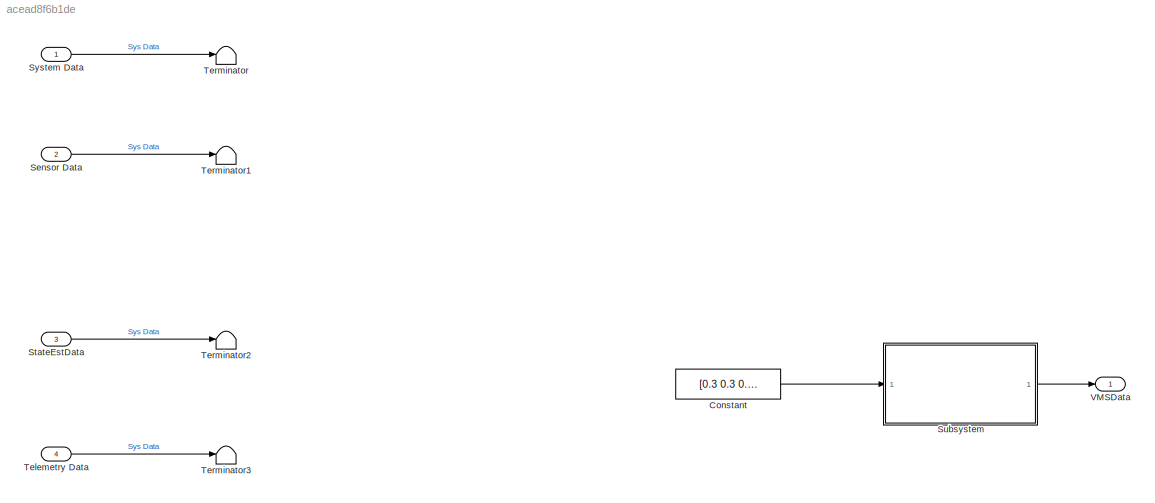
MODEL slx_acead8f6b1de
KIND model
CONFIG AbsTol = auto
CONFIG EnableMultiTasking = off
CONFIG FixedStep = 0.001
CONFIG MaxStep = auto
CONFIG MinStep = auto
CONFIG RelTol = 1e-3
CONFIG SampleTimeConstraint = Unconstrained
CONFIG SolverName = FixedStepAuto
CONFIG StartTime = 0.0
CONFIG StopTime = 10.0
BLOCK [Constant] Constant
  OutDataTypeStr = single
  Value = [0.3 0.3 0.3 0.3]
BLOCK [Inport] Sensor Data
  BusOutputAsStruct = on
  OutDataTypeStr = Bus: SensorData
  Port = 2
  SampleTime = framePeriod_s
BLOCK [Inport] StateEstData
  BusOutputAsStruct = on
  OutDataTypeStr = Bus: StateEstData
  Port = 3
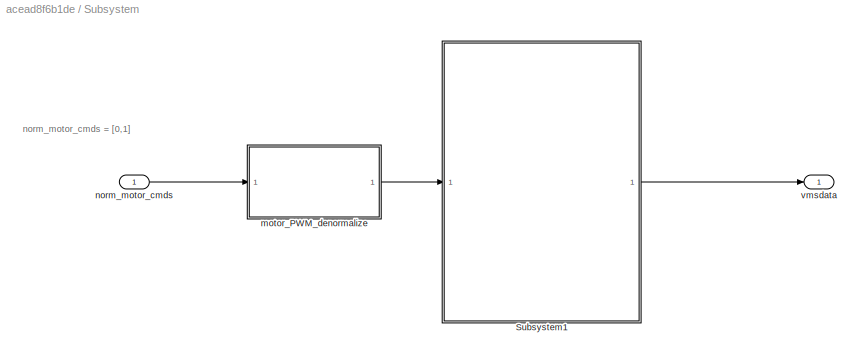
BLOCK [SubSystem] Subsystem
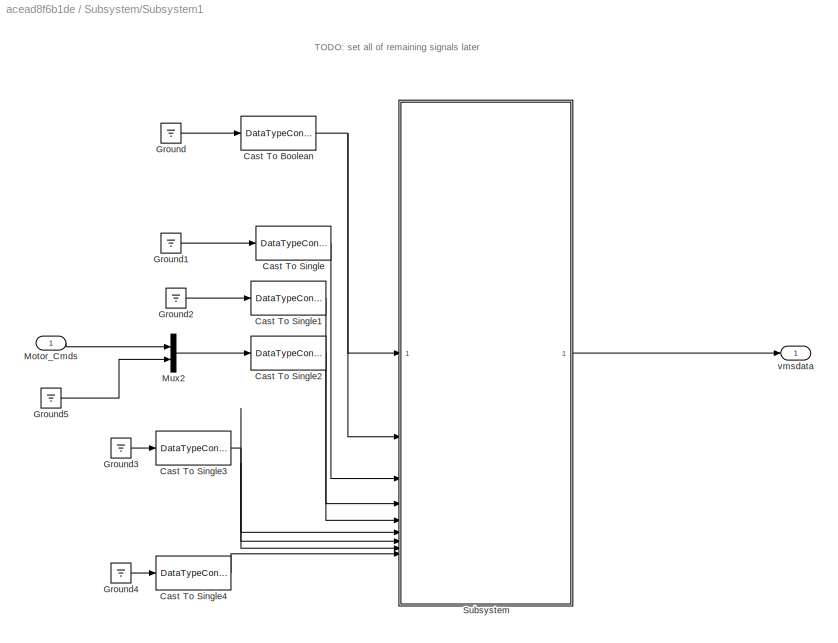
BLOCK [SubSystem] Subsystem/Subsystem1
BLOCK [DataTypeConversion] Subsystem/Subsystem1/Cast To Boolean
  OutDataTypeStr = boolean
  RndMeth = Floor
  SaturateOnIntegerOverflow = off
BLOCK [DataTypeConversion] Subsystem/Subsystem1/Cast To Single
  OutDataTypeStr = int8
  RndMeth = Floor
  SaturateOnIntegerOverflow = off
BLOCK [DataTypeConversion] Subsystem/Subsystem1/Cast To Single1
  OutDataTypeStr = int16
  RndMeth = Floor
  SaturateOnIntegerOverflow = off
BLOCK [DataTypeConversion] Subsystem/Subsystem1/Cast To Single2
  OutDataTypeStr = int16
  RndMeth = Floor
  SaturateOnIntegerOverflow = off
BLOCK [DataTypeConversion] Subsystem/Subsystem1/Cast To Single3
  OutDataTypeStr = single
  RndMeth = Floor
  SaturateOnIntegerOverflow = off
BLOCK [DataTypeConversion] Subsystem/Subsystem1/Cast To Single4
  OutDataTypeStr = single
  RndMeth = Floor
  SaturateOnIntegerOverflow = off
BLOCK [Ground] Subsystem/Subsystem1/Ground
BLOCK [Ground] Subsystem/Subsystem1/Ground1
BLOCK [Ground] Subsystem/Subsystem1/Ground2
BLOCK [Ground] Subsystem/Subsystem1/Ground3
BLOCK [Ground] Subsystem/Subsystem1/Ground4
BLOCK [Ground] Subsystem/Subsystem1/Ground5
BLOCK [Inport] Subsystem/Subsystem1/Motor_Cmds
BLOCK [Mux] Subsystem/Subsystem1/Mux2
  DisplayOption = bar
  Inputs = 2
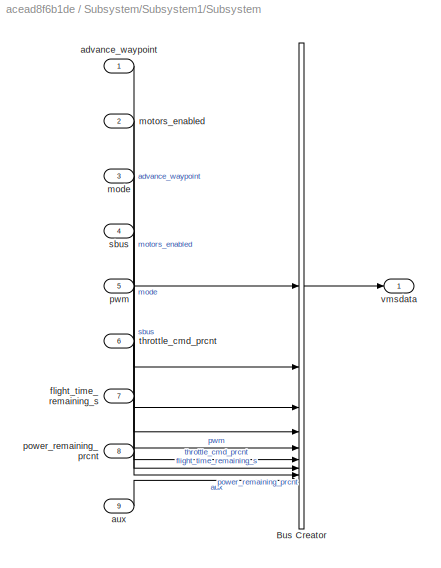
BLOCK [SubSystem] Subsystem/Subsystem1/Subsystem
BLOCK [BusCreator] Subsystem/Subsystem1/Subsystem/Bus Creator
  DisplayOption = bar
  InheritFromInputs = off
  Inputs = 9
  NonVirtualBus = on
  OutDataTypeStr = Bus: VmsData
BLOCK [Inport] Subsystem/Subsystem1/Subsystem/advance_waypoint
BLOCK [Inport] Subsystem/Subsystem1/Subsystem/aux
  Port = 9
BLOCK [Inport] Subsystem/Subsystem1/Subsystem/flight_time_remaining_s
  Port = 7
BLOCK [Inport] Subsystem/Subsystem1/Subsystem/mode
  Port = 3
BLOCK [Inport] Subsystem/Subsystem1/Subsystem/motors_enabled
  Port = 2
BLOCK [Inport] Subsystem/Subsystem1/Subsystem/power_remaining_prcnt
  Port = 8
BLOCK [Inport] Subsystem/Subsystem1/Subsystem/pwm
  Port = 5
BLOCK [Inport] Subsystem/Subsystem1/Subsystem/sbus
  Port = 4
BLOCK [Inport] Subsystem/Subsystem1/Subsystem/throttle_cmd_prcnt
  Port = 6
BLOCK [Outport] Subsystem/Subsystem1/Subsystem/vmsdata
BLOCK [Outport] Subsystem/Subsystem1/vmsdata
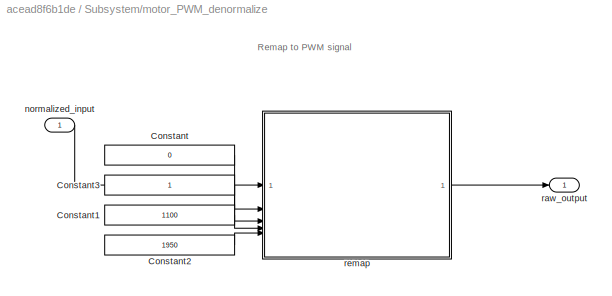
BLOCK [SubSystem] Subsystem/motor_PWM_denormalize
BLOCK [Constant] Subsystem/motor_PWM_denormalize/Constant
  OutDataTypeStr = single
  Value = 0
BLOCK [Constant] Subsystem/motor_PWM_denormalize/Constant1
  OutDataTypeStr = single
  Value = 1100
BLOCK [Constant] Subsystem/motor_PWM_denormalize/Constant2
  OutDataTypeStr = single
  Value = 1950
BLOCK [Constant] Subsystem/motor_PWM_denormalize/Constant3
  OutDataTypeStr = single
BLOCK [Inport] Subsystem/motor_PWM_denormalize/normalized_input
BLOCK [Outport] Subsystem/motor_PWM_denormalize/raw_output
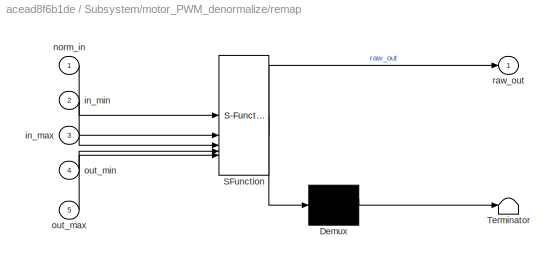
BLOCK [SubSystem] Subsystem/motor_PWM_denormalize/remap
  ErrorFcn = Stateflow.Translate.translate
  PermitHierarchicalResolution = ExplicitOnly
  SFBlockType = MATLAB Function
  TreatAsAtomicUnit = on
BLOCK [Demux] Subsystem/motor_PWM_denormalize/remap/ Demux 
  Outputs = 1
BLOCK [S-Function] Subsystem/motor_PWM_denormalize/remap/ SFunction 
  EnableBusSupport = on
  FunctionName = sf_sfun
  PortCounts = [5 2]
  SFcnIsStateOwnerBlock = off
  SFunctionDeploymentMode = off
  Tag = Stateflow S-Function 18
BLOCK [Terminator] Subsystem/motor_PWM_denormalize/remap/ Terminator 
BLOCK [Inport] Subsystem/motor_PWM_denormalize/remap/in_max
  Port = 3
BLOCK [Inport] Subsystem/motor_PWM_denormalize/remap/in_min
  Port = 2
BLOCK [Inport] Subsystem/motor_PWM_denormalize/remap/norm_in
BLOCK [Inport] Subsystem/motor_PWM_denormalize/remap/out_max
  Port = 5
BLOCK [Inport] Subsystem/motor_PWM_denormalize/remap/out_min
  Port = 4
BLOCK [Outport] Subsystem/motor_PWM_denormalize/remap/raw_out
BLOCK [Inport] Subsystem/norm_motor_cmds
BLOCK [Outport] Subsystem/vmsdata
BLOCK [Inport] System Data
  BusOutputAsStruct = on
  OutDataTypeStr = Bus: SysData
  SampleTime = framePeriod_s
BLOCK [Inport] Telemetry Data
  BusOutputAsStruct = on
  OutDataTypeStr = Bus: TelemData
  Port = 4
  SampleTime = framePeriod_s
BLOCK [Terminator] Terminator
BLOCK [Terminator] Terminator1
BLOCK [Terminator] Terminator2
BLOCK [Terminator] Terminator3
BLOCK [Outport] VMSData
  OutDataTypeStr = Bus: VmsData
ANNOTATION Subsystem: norm_motor_cmds = [0,1]
ANNOTATION Subsystem/Subsystem1: TODO: set all of remaining signals later
ANNOTATION Subsystem/motor_PWM_denormalize: Remap to PWM signal
LINE Constant:1 -> Subsystem:1
LINE Sensor Data:1 -> Terminator1:1
LINE StateEstData:1 -> Terminator2:1
NET Subsystem/Subsystem1/Cast To Boolean:1 -> Subsystem/Subsystem1/Subsystem:1, Subsystem/Subsystem1/Subsystem:2
LINE Subsystem/Subsystem1/Cast To Single1:1 -> Subsystem/Subsystem1/Subsystem:4
LINE Subsystem/Subsystem1/Cast To Single2:1 -> Subsystem/Subsystem1/Subsystem:5
NET Subsystem/Subsystem1/Cast To Single3:1 -> Subsystem/Subsystem1/Subsystem:6, Subsystem/Subsystem1/Subsystem:7, Subsystem/Subsystem1/Subsystem:8
LINE Subsystem/Subsystem1/Cast To Single4:1 -> Subsystem/Subsystem1/Subsystem:9
LINE Subsystem/Subsystem1/Cast To Single:1 -> Subsystem/Subsystem1/Subsystem:3
LINE Subsystem/Subsystem1/Ground1:1 -> Subsystem/Subsystem1/Cast To Single:1
LINE Subsystem/Subsystem1/Ground2:1 -> Subsystem/Subsystem1/Cast To Single1:1
LINE Subsystem/Subsystem1/Ground3:1 -> Subsystem/Subsystem1/Cast To Single3:1
LINE Subsystem/Subsystem1/Ground4:1 -> Subsystem/Subsystem1/Cast To Single4:1
LINE Subsystem/Subsystem1/Ground5:1 -> Subsystem/Subsystem1/Mux2:2
LINE Subsystem/Subsystem1/Ground:1 -> Subsystem/Subsystem1/Cast To Boolean:1
LINE Subsystem/Subsystem1/Motor_Cmds:1 -> Subsystem/Subsystem1/Mux2:1
LINE Subsystem/Subsystem1/Mux2:1 -> Subsystem/Subsystem1/Cast To Single2:1
LINE Subsystem/Subsystem1/Subsystem/Bus Creator:1 -> Subsystem/Subsystem1/Subsystem/vmsdata:1
LINE Subsystem/Subsystem1/Subsystem/advance_waypoint:1 -> Subsystem/Subsystem1/Subsystem/Bus Creator:1
LINE Subsystem/Subsystem1/Subsystem/aux:1 -> Subsystem/Subsystem1/Subsystem/Bus Creator:9
LINE Subsystem/Subsystem1/Subsystem/flight_time_remaining_s:1 -> Subsystem/Subsystem1/Subsystem/Bus Creator:7
LINE Subsystem/Subsystem1/Subsystem/mode:1 -> Subsystem/Subsystem1/Subsystem/Bus Creator:3
LINE Subsystem/Subsystem1/Subsystem/motors_enabled:1 -> Subsystem/Subsystem1/Subsystem/Bus Creator:2
LINE Subsystem/Subsystem1/Subsystem/power_remaining_prcnt:1 -> Subsystem/Subsystem1/Subsystem/Bus Creator:8
LINE Subsystem/Subsystem1/Subsystem/pwm:1 -> Subsystem/Subsystem1/Subsystem/Bus Creator:5
LINE Subsystem/Subsystem1/Subsystem/sbus:1 -> Subsystem/Subsystem1/Subsystem/Bus Creator:4
LINE Subsystem/Subsystem1/Subsystem/throttle_cmd_prcnt:1 -> Subsystem/Subsystem1/Subsystem/Bus Creator:6
LINE Subsystem/Subsystem1/Subsystem:1 -> Subsystem/Subsystem1/vmsdata:1
LINE Subsystem/Subsystem1:1 -> Subsystem/vmsdata:1
LINE Subsystem/motor_PWM_denormalize/Constant1:1 -> Subsystem/motor_PWM_denormalize/remap:4
LINE Subsystem/motor_PWM_denormalize/Constant2:1 -> Subsystem/motor_PWM_denormalize/remap:5
LINE Subsystem/motor_PWM_denormalize/Constant3:1 -> Subsystem/motor_PWM_denormalize/remap:3
LINE Subsystem/motor_PWM_denormalize/Constant:1 -> Subsystem/motor_PWM_denormalize/remap:2
LINE Subsystem/motor_PWM_denormalize/normalized_input:1 -> Subsystem/motor_PWM_denormalize/remap:1
LINE Subsystem/motor_PWM_denormalize/remap:1 -> Subsystem/motor_PWM_denormalize/raw_output:1
LINE Subsystem/motor_PWM_denormalize:1 -> Subsystem/Subsystem1:1
LINE Subsystem/norm_motor_cmds:1 -> Subsystem/motor_PWM_denormalize:1
LINE Subsystem:1 -> VMSData:1
LINE System Data:1 -> Terminator:1
LINE Telemetry Data:1 -> Terminator3:1
note: NET lines group one-source signal fan-out (src -> all destinations, sorted); 1:1 wires keep LINE
CHART Subsystem/motor_PWM_denormalize/remap states=1 transitions=1
  STATE_LABEL 'eML_blk_kernel()'
  STATE_LABEL 'SCRIPT:\nfunction raw_out = remap(norm_in,in_min,in_max,out_min,out_max)\nraw_out = (norm_in - in_min) * (out_max - out_min)/(in_max-in_min) + out_min;\n'
CHART  states=0 transitions=0
